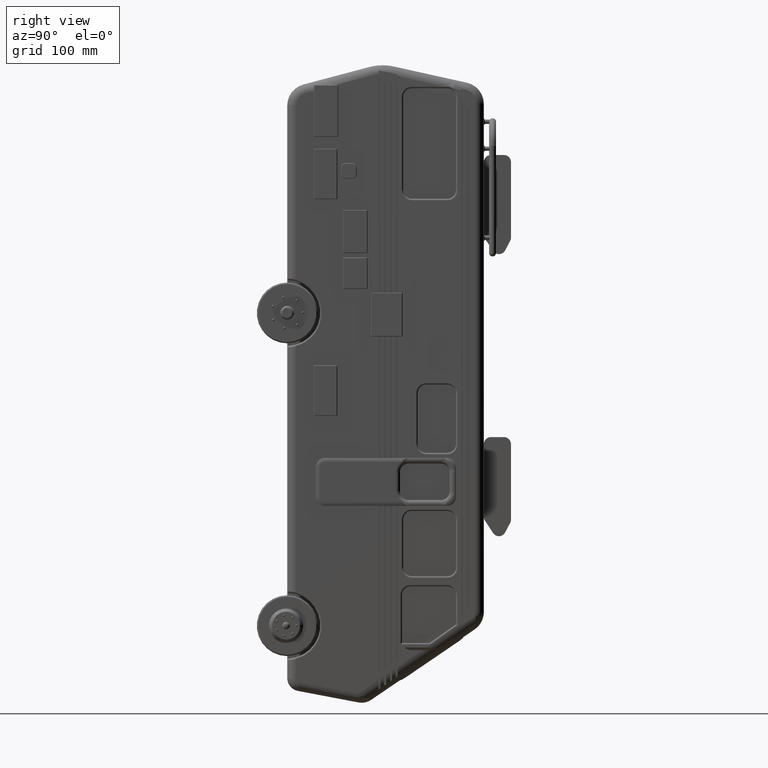
[diagram: clean part render]
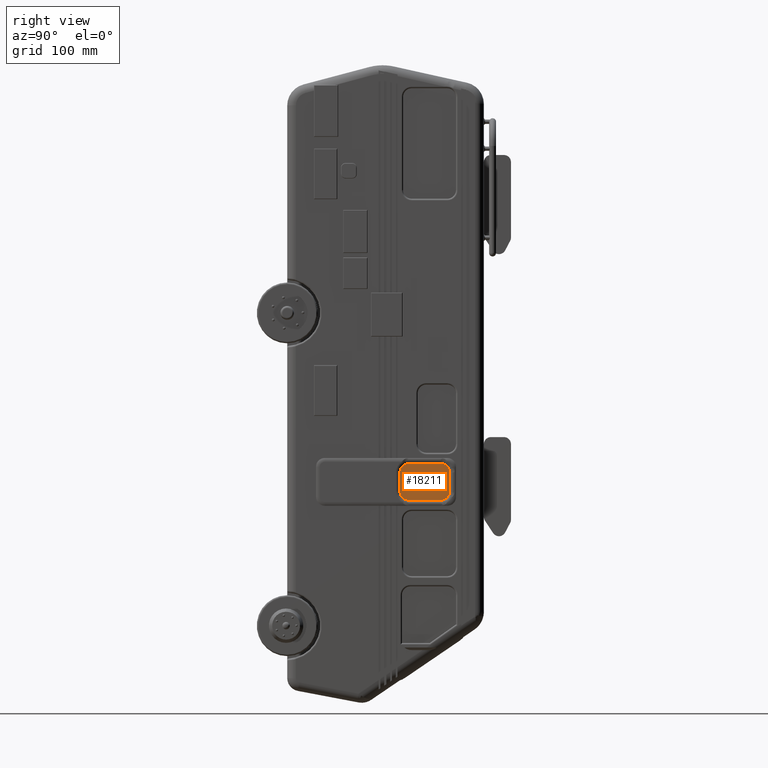
[diagram: same view with one face highlighted and labeled with its STEP entity id]
A machine part, right view. The second image highlights one B-rep face of the part: STEP entity #18211.
In plain terms, the highlighted planar face has unit normal (1, 0, 0).
Its self-contained STEP definition (entity closure, byte-faithful):
#250 = EDGE_CURVE ( 'NONE', #2172, #17693, #35128, .T. ) ;
#763 = EDGE_CURVE ( 'NONE', #37674, #8209, #16841, .T. ) ;
#788 = VECTOR ( 'NONE', #17832, 1000.000000000000000 ) ;
#1184 = DIRECTION ( 'NONE',  ( 0.000000000000000000, 0.000000000000000000, -1.000000000000000000 ) ) ;
#1375 = CARTESIAN_POINT ( 'NONE',  ( 123.0000000000000000, 242.0802129805559844, -567.4309046234684502 ) ) ;
#2172 = VERTEX_POINT ( 'NONE', #40596 ) ;
#2350 = CARTESIAN_POINT ( 'NONE',  ( 123.0000000000000000, 279.2295902267034649, -567.4309046234684502 ) ) ;
#2411 = CARTESIAN_POINT ( 'NONE',  ( 123.0000000000000000, 279.2295902267034649, -545.5314272501370851 ) ) ;
#2672 = AXIS2_PLACEMENT_3D ( 'NONE', #39391, #10977, #13587 ) ;
#3018 = ORIENTED_EDGE ( 'NONE', *, *, #31745, .T. ) ;
#3173 = AXIS2_PLACEMENT_3D ( 'NONE', #14057, #38337, #34941 ) ;
#3387 = EDGE_CURVE ( 'NONE', #24766, #31324, #8965, .T. ) ;
#3398 = AXIS2_PLACEMENT_3D ( 'NONE', #26439, #8957, #29200 ) ;
#3785 = DIRECTION ( 'NONE',  ( 1.000000000000000000, 0.000000000000000000, -0.000000000000000000 ) ) ;
#4194 = CIRCLE ( 'NONE', #41017, 10.00000000000000888 ) ;
#4930 = CARTESIAN_POINT ( 'NONE',  ( 123.0000000000000000, 279.2295902267034649, -545.5314272501370851 ) ) ;
#5730 = AXIS2_PLACEMENT_3D ( 'NONE', #36822, #7564, #6939 ) ;
#6546 = CARTESIAN_POINT ( 'NONE',  ( 123.0000000000000000, 232.0802129805559844, -545.5314272501371988 ) ) ;
#6810 = CARTESIAN_POINT ( 'NONE',  ( 123.0000000000000000, 242.0802129805559844, -545.5314272501370851 ) ) ;
#6818 = CARTESIAN_POINT ( 'NONE',  ( 123.0000000000000000, 289.2295902267034649, -545.5314272501371988 ) ) ;
#6939 = DIRECTION ( 'NONE',  ( 0.000000000000000000, 0.000000000000000000, 1.000000000000000000 ) ) ;
#7019 = PLANE ( 'NONE',  #22510 ) ;
#7223 = EDGE_CURVE ( 'NONE', #10851, #37674, #17381, .T. ) ;
#7261 = EDGE_CURVE ( 'NONE', #39313, #41004, #35754, .T. ) ;
#7564 = DIRECTION ( 'NONE',  ( 1.000000000000000000, 0.000000000000000000, -0.000000000000000000 ) ) ;
#7829 = LINE ( 'NONE', #39650, #13484 ) ;
#8209 = VERTEX_POINT ( 'NONE', #11060 ) ;
#8957 = DIRECTION ( 'NONE',  ( 1.000000000000000000, 0.000000000000000000, -0.000000000000000000 ) ) ;
#8965 = LINE ( 'NONE', #22036, #18621 ) ;
#9079 = CIRCLE ( 'NONE', #14549, 10.00000000000000888 ) ;
#9190 = CARTESIAN_POINT ( 'NONE',  ( 123.0000000000000000, 279.2295902267034649, -545.5314272501370851 ) ) ;
#9488 = ORIENTED_EDGE ( 'NONE', *, *, #18452, .T. ) ;
#9688 = EDGE_CURVE ( 'NONE', #11004, #2172, #23346, .T. ) ;
#9745 = ORIENTED_EDGE ( 'NONE', *, *, #763, .T. ) ;
#10041 = CARTESIAN_POINT ( 'NONE',  ( 123.0000000000000000, 242.0802129805559844, -545.5314272501370851 ) ) ;
#10117 = ORIENTED_EDGE ( 'NONE', *, *, #38130, .T. ) ;
#10161 = LINE ( 'NONE', #15078, #788 ) ;
#10212 = DIRECTION ( 'NONE',  ( 0.000000000000000000, 0.000000000000000000, 1.000000000000000000 ) ) ;
#10414 = DIRECTION ( 'NONE',  ( -0.000000000000000000, -0.000000000000000000, 1.000000000000000000 ) ) ;
#10517 = AXIS2_PLACEMENT_3D ( 'NONE', #2350, #38831, #22665 ) ;
#10851 = VERTEX_POINT ( 'NONE', #24843 ) ;
#10977 = DIRECTION ( 'NONE',  ( 1.000000000000000000, 0.000000000000000000, 0.000000000000000000 ) ) ;
#11004 = VERTEX_POINT ( 'NONE', #22623 ) ;
#11060 = CARTESIAN_POINT ( 'NONE',  ( 123.0000000000000000, 288.1614388097572714, -571.9278014300897439 ) ) ;
#11373 = DIRECTION ( 'NONE',  ( 1.000000000000000000, 0.000000000000000000, 0.000000000000000000 ) ) ;
#11459 = ORIENTED_EDGE ( 'NONE', *, *, #9688, .T. ) ;
#12117 = CIRCLE ( 'NONE', #29141, 10.00000000000000888 ) ;
#12832 = DIRECTION ( 'NONE',  ( 0.000000000000000000, 0.000000000000000000, -1.000000000000000000 ) ) ;
#13484 = VECTOR ( 'NONE', #10414, 1000.000000000000000 ) ;
#13587 = DIRECTION ( 'NONE',  ( 0.000000000000000000, 0.000000000000000000, -1.000000000000000000 ) ) ;
#13626 = CARTESIAN_POINT ( 'NONE',  ( 123.0000000000000000, 242.0802129805560412, -535.5314272501369715 ) ) ;
#13732 = DIRECTION ( 'NONE',  ( 1.000000000000000000, 0.000000000000000000, 0.000000000000000000 ) ) ;
#14057 = CARTESIAN_POINT ( 'NONE',  ( 123.0000000000000000, 279.2295902267034649, -567.4309046234684502 ) ) ;
#14512 = DIRECTION ( 'NONE',  ( 0.000000000000000000, 0.000000000000000000, -1.000000000000000000 ) ) ;
#14549 = AXIS2_PLACEMENT_3D ( 'NONE', #17477, #3785, #10212 ) ;
#14899 = ORIENTED_EDGE ( 'NONE', *, *, #7223, .T. ) ;
#15078 = CARTESIAN_POINT ( 'NONE',  ( 123.0000000000000000, 279.2295902267034080, -535.5314272501369715 ) ) ;
#15736 = EDGE_CURVE ( 'NONE', #41004, #39870, #12117, .T. ) ;
#16485 = DIRECTION ( 'NONE',  ( 1.000000000000000000, 0.000000000000000000, 0.000000000000000000 ) ) ;
#16841 = CIRCLE ( 'NONE', #3173, 10.00000000000000888 ) ;
#17314 = FACE_OUTER_BOUND ( 'NONE', #23038, .T. ) ;
#17381 = CIRCLE ( 'NONE', #10517, 10.00000000000000888 ) ;
#17477 = CARTESIAN_POINT ( 'NONE',  ( 123.0000000000000000, 279.2295902267034649, -567.4309046234684502 ) ) ;
#17693 = VERTEX_POINT ( 'NONE', #41270 ) ;
#17783 = CARTESIAN_POINT ( 'NONE',  ( 123.0000000000000000, 242.0802129805559844, -567.4309046234684502 ) ) ;
#17832 = DIRECTION ( 'NONE',  ( 0.000000000000000000, -1.000000000000000000, 0.000000000000000000 ) ) ;
#18211 = ADVANCED_FACE ( 'NONE', ( #17314 ), #7019, .T. ) ;
#18452 = EDGE_CURVE ( 'NONE', #31042, #10851, #37451, .T. ) ;
#18463 = CIRCLE ( 'NONE', #25320, 10.00000000000000888 ) ;
#18467 = CARTESIAN_POINT ( 'NONE',  ( 123.0000000000000000, 232.0802129805559844, -545.5314272501371988 ) ) ;
#18621 = VECTOR ( 'NONE', #18818, 1000.000000000000000 ) ;
#18818 = DIRECTION ( 'NONE',  ( -0.000000000000000000, 1.000000000000000000, -0.000000000000000000 ) ) ;
#19294 = DIRECTION ( 'NONE',  ( 0.000000000000000000, 0.000000000000000000, -1.000000000000000000 ) ) ;
#19403 = EDGE_CURVE ( 'NONE', #39870, #11004, #21134, .T. ) ;
#19617 = AXIS2_PLACEMENT_3D ( 'NONE', #35317, #38307, #29156 ) ;
#20352 = EDGE_CURVE ( 'NONE', #17693, #35619, #10161, .T. ) ;
#20856 = ORIENTED_EDGE ( 'NONE', *, *, #26944, .T. ) ;
#21134 = CIRCLE ( 'NONE', #2672, 10.00000000000000888 ) ;
#21454 = AXIS2_PLACEMENT_3D ( 'NONE', #10041, #23099, #14512 ) ;
#21834 = CARTESIAN_POINT ( 'NONE',  ( 123.0000000000000000, 236.6009049902275478, -575.7961412577259352 ) ) ;
#21862 = ORIENTED_EDGE ( 'NONE', *, *, #3387, .T. ) ;
#22036 = CARTESIAN_POINT ( 'NONE',  ( 123.0000000000000000, 279.2295902267034080, -577.4309046234684502 ) ) ;
#22427 = CARTESIAN_POINT ( 'NONE',  ( 123.0000000000000000, 289.2295902267034649, -567.4309046234683365 ) ) ;
#22510 = AXIS2_PLACEMENT_3D ( 'NONE', #6810, #16485, #23729 ) ;
#22623 = CARTESIAN_POINT ( 'NONE',  ( 123.0000000000000000, 284.8405540689385589, -537.2539225076961884 ) ) ;
#22665 = DIRECTION ( 'NONE',  ( 0.000000000000000000, 0.000000000000000000, 1.000000000000000000 ) ) ;
#22853 = DIRECTION ( 'NONE',  ( 0.000000000000000000, 0.000000000000000000, -1.000000000000000000 ) ) ;
#22925 = ORIENTED_EDGE ( 'NONE', *, *, #7261, .T. ) ;
#23038 = EDGE_LOOP ( 'NONE', ( #37891, #37315, #10117, #35757, #3018, #21862, #41730, #9488, #14899, #9745, #20856, #40208, #22925, #34458, #23551, #11459, #30657, #23243 ) ) ;
#23099 = DIRECTION ( 'NONE',  ( 1.000000000000000000, 0.000000000000000000, 0.000000000000000000 ) ) ;
#23243 = ORIENTED_EDGE ( 'NONE', *, *, #20352, .T. ) ;
#23346 = CIRCLE ( 'NONE', #37594, 10.00000000000000888 ) ;
#23551 = ORIENTED_EDGE ( 'NONE', *, *, #19403, .T. ) ;
#23623 = VECTOR ( 'NONE', #22853, 1000.000000000000000 ) ;
#23729 = DIRECTION ( 'NONE',  ( 0.000000000000000000, 0.000000000000000000, -1.000000000000000000 ) ) ;
#24166 = DIRECTION ( 'NONE',  ( 0.000000000000000000, 0.000000000000000000, -1.000000000000000000 ) ) ;
#24194 = CIRCLE ( 'NONE', #5730, 10.00000000000000888 ) ;
#24766 = VERTEX_POINT ( 'NONE', #33332 ) ;
#24843 = CARTESIAN_POINT ( 'NONE',  ( 123.0000000000000000, 284.7592749807562313, -575.7629263781685722 ) ) ;
#25068 = VERTEX_POINT ( 'NONE', #22427 ) ;
#25320 = AXIS2_PLACEMENT_3D ( 'NONE', #1375, #34467, #1184 ) ;
#25517 = CIRCLE ( 'NONE', #21454, 10.00000000000000888 ) ;
#26092 = VERTEX_POINT ( 'NONE', #18467 ) ;
#26226 = EDGE_CURVE ( 'NONE', #40194, #30987, #4194, .T. ) ;
#26313 = CARTESIAN_POINT ( 'NONE',  ( 123.0000000000000000, 279.2295902267034080, -577.4309046234684502 ) ) ;
#26344 = CARTESIAN_POINT ( 'NONE',  ( 123.0000000000000000, 288.1198102369010599, -540.9527824538810137 ) ) ;
#26439 = CARTESIAN_POINT ( 'NONE',  ( 123.0000000000000000, 279.2295902267034649, -567.4309046234684502 ) ) ;
#26944 = EDGE_CURVE ( 'NONE', #8209, #25068, #9079, .T. ) ;
#27840 = DIRECTION ( 'NONE',  ( 0.000000000000000000, 0.000000000000000000, -1.000000000000000000 ) ) ;
#27959 = CARTESIAN_POINT ( 'NONE',  ( 123.0000000000000000, 232.0802129805559844, -567.4309046234683365 ) ) ;
#28495 = DIRECTION ( 'NONE',  ( 1.000000000000000000, 0.000000000000000000, 0.000000000000000000 ) ) ;
#28976 = VERTEX_POINT ( 'NONE', #29769 ) ;
#29141 = AXIS2_PLACEMENT_3D ( 'NONE', #2411, #28495, #19294 ) ;
#29156 = DIRECTION ( 'NONE',  ( 0.000000000000000000, 0.000000000000000000, -1.000000000000000000 ) ) ;
#29200 = DIRECTION ( 'NONE',  ( 0.000000000000000000, 0.000000000000000000, 1.000000000000000000 ) ) ;
#29431 = CARTESIAN_POINT ( 'NONE',  ( 123.0000000000000000, 288.1210045545439016, -572.0072297048709515 ) ) ;
#29648 = LINE ( 'NONE', #6546, #23623 ) ;
#29769 = CARTESIAN_POINT ( 'NONE',  ( 123.0000000000000000, 236.5359356498993861, -537.2091085299264250 ) ) ;
#30357 = AXIS2_PLACEMENT_3D ( 'NONE', #9190, #35417, #12832 ) ;
#30488 = EDGE_CURVE ( 'NONE', #25068, #39313, #7829, .T. ) ;
#30657 = ORIENTED_EDGE ( 'NONE', *, *, #250, .T. ) ;
#30900 = CARTESIAN_POINT ( 'NONE',  ( 123.0000000000000000, 288.1828876627471914, -541.0773880696028755 ) ) ;
#30987 = VERTEX_POINT ( 'NONE', #21834 ) ;
#31042 = VERTEX_POINT ( 'NONE', #35217 ) ;
#31324 = VERTEX_POINT ( 'NONE', #26313 ) ;
#31745 = EDGE_CURVE ( 'NONE', #30987, #24766, #18463, .T. ) ;
#33064 = AXIS2_PLACEMENT_3D ( 'NONE', #4930, #11373, #27840 ) ;
#33332 = CARTESIAN_POINT ( 'NONE',  ( 123.0000000000000000, 242.0802129805560412, -577.4309046234684502 ) ) ;
#34386 = EDGE_CURVE ( 'NONE', #28976, #26092, #25517, .T. ) ;
#34458 = ORIENTED_EDGE ( 'NONE', *, *, #15736, .T. ) ;
#34467 = DIRECTION ( 'NONE',  ( 1.000000000000000000, 0.000000000000000000, 0.000000000000000000 ) ) ;
#34724 = EDGE_CURVE ( 'NONE', #31324, #31042, #24194, .T. ) ;
#34941 = DIRECTION ( 'NONE',  ( 0.000000000000000000, 0.000000000000000000, 1.000000000000000000 ) ) ;
#35128 = CIRCLE ( 'NONE', #33064, 10.00000000000000888 ) ;
#35217 = CARTESIAN_POINT ( 'NONE',  ( 123.0000000000000000, 284.2558814944727601, -576.0759260862264455 ) ) ;
#35264 = CIRCLE ( 'NONE', #19617, 10.00000000000000888 ) ;
#35317 = CARTESIAN_POINT ( 'NONE',  ( 123.0000000000000000, 242.0802129805559844, -545.5314272501370851 ) ) ;
#35417 = DIRECTION ( 'NONE',  ( 1.000000000000000000, 0.000000000000000000, 0.000000000000000000 ) ) ;
#35619 = VERTEX_POINT ( 'NONE', #13626 ) ;
#35678 = DIRECTION ( 'NONE',  ( 1.000000000000000000, 0.000000000000000000, 0.000000000000000000 ) ) ;
#35754 = CIRCLE ( 'NONE', #30357, 10.00000000000000888 ) ;
#35757 = ORIENTED_EDGE ( 'NONE', *, *, #26226, .T. ) ;
#36822 = CARTESIAN_POINT ( 'NONE',  ( 123.0000000000000000, 279.2295902267034649, -567.4309046234684502 ) ) ;
#37315 = ORIENTED_EDGE ( 'NONE', *, *, #34386, .T. ) ;
#37451 = CIRCLE ( 'NONE', #3398, 10.00000000000000888 ) ;
#37594 = AXIS2_PLACEMENT_3D ( 'NONE', #42075, #35678, #24166 ) ;
#37674 = VERTEX_POINT ( 'NONE', #29431 ) ;
#37891 = ORIENTED_EDGE ( 'NONE', *, *, #39535, .T. ) ;
#38130 = EDGE_CURVE ( 'NONE', #26092, #40194, #29648, .T. ) ;
#38307 = DIRECTION ( 'NONE',  ( 1.000000000000000000, 0.000000000000000000, 0.000000000000000000 ) ) ;
#38337 = DIRECTION ( 'NONE',  ( 1.000000000000000000, 0.000000000000000000, -0.000000000000000000 ) ) ;
#38831 = DIRECTION ( 'NONE',  ( 1.000000000000000000, 0.000000000000000000, -0.000000000000000000 ) ) ;
#39313 = VERTEX_POINT ( 'NONE', #6818 ) ;
#39391 = CARTESIAN_POINT ( 'NONE',  ( 123.0000000000000000, 279.2295902267034649, -545.5314272501370851 ) ) ;
#39535 = EDGE_CURVE ( 'NONE', #35619, #28976, #35264, .T. ) ;
#39650 = CARTESIAN_POINT ( 'NONE',  ( 123.0000000000000000, 289.2295902267034649, -545.5314272501371988 ) ) ;
#39870 = VERTEX_POINT ( 'NONE', #26344 ) ;
#40179 = DIRECTION ( 'NONE',  ( 0.000000000000000000, 0.000000000000000000, -1.000000000000000000 ) ) ;
#40194 = VERTEX_POINT ( 'NONE', #27959 ) ;
#40208 = ORIENTED_EDGE ( 'NONE', *, *, #30488, .T. ) ;
#40596 = CARTESIAN_POINT ( 'NONE',  ( 123.0000000000000000, 284.2566723494218763, -536.8868656457846100 ) ) ;
#41004 = VERTEX_POINT ( 'NONE', #30900 ) ;
#41017 = AXIS2_PLACEMENT_3D ( 'NONE', #17783, #13732, #40179 ) ;
#41270 = CARTESIAN_POINT ( 'NONE',  ( 123.0000000000000000, 279.2295902267034080, -535.5314272501369715 ) ) ;
#41730 = ORIENTED_EDGE ( 'NONE', *, *, #34724, .T. ) ;
#42075 = CARTESIAN_POINT ( 'NONE',  ( 123.0000000000000000, 279.2295902267034649, -545.5314272501370851 ) ) ;